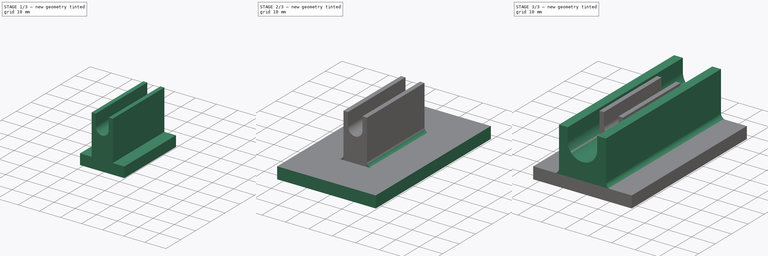
[diagram: build sequence overview — one tinted view per stage of 3, left to right]
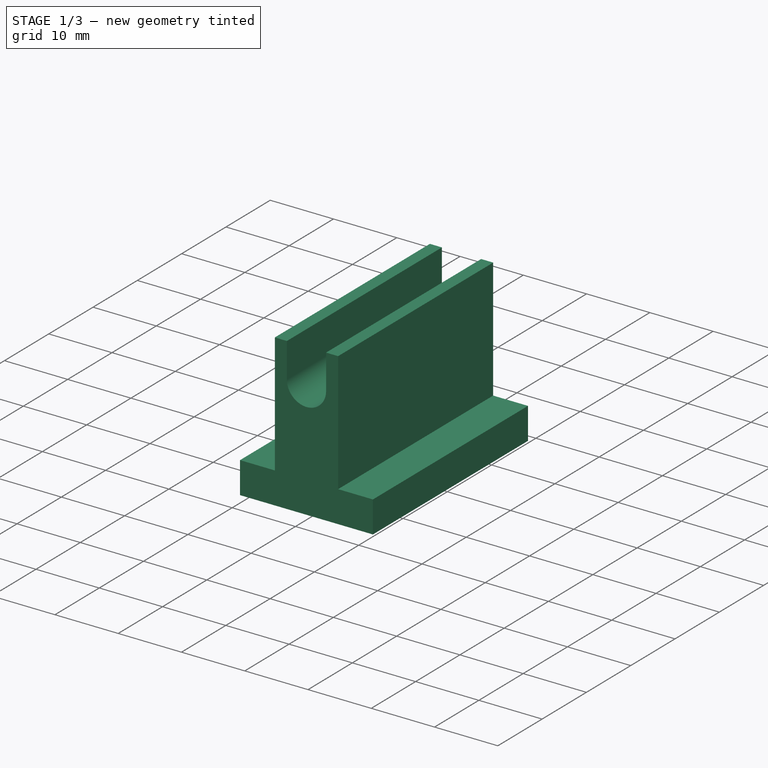
[diagram: stage 1 of 3 — iso view after this stage's code; geometry added in this stage tinted green]
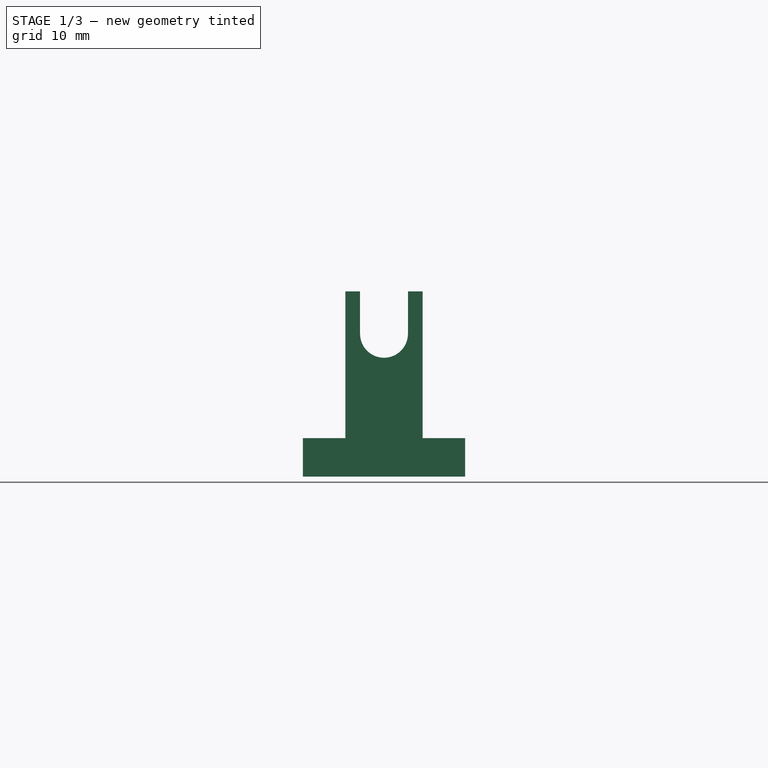
[diagram: stage 1 of 3 — front view after this stage's code; geometry added in this stage tinted green]
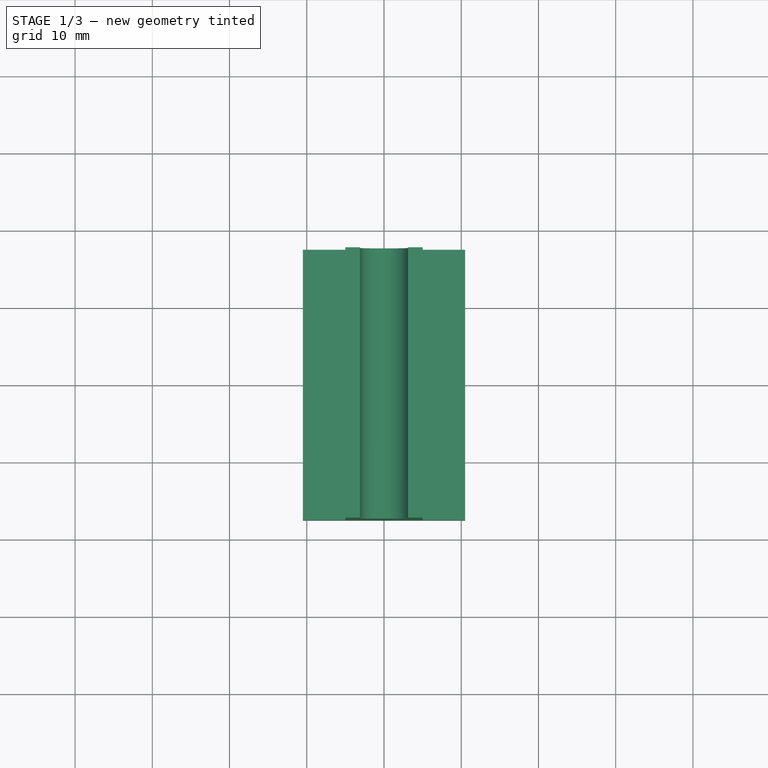
[diagram: stage 1 of 3 — top view after this stage's code; geometry added in this stage tinted green]
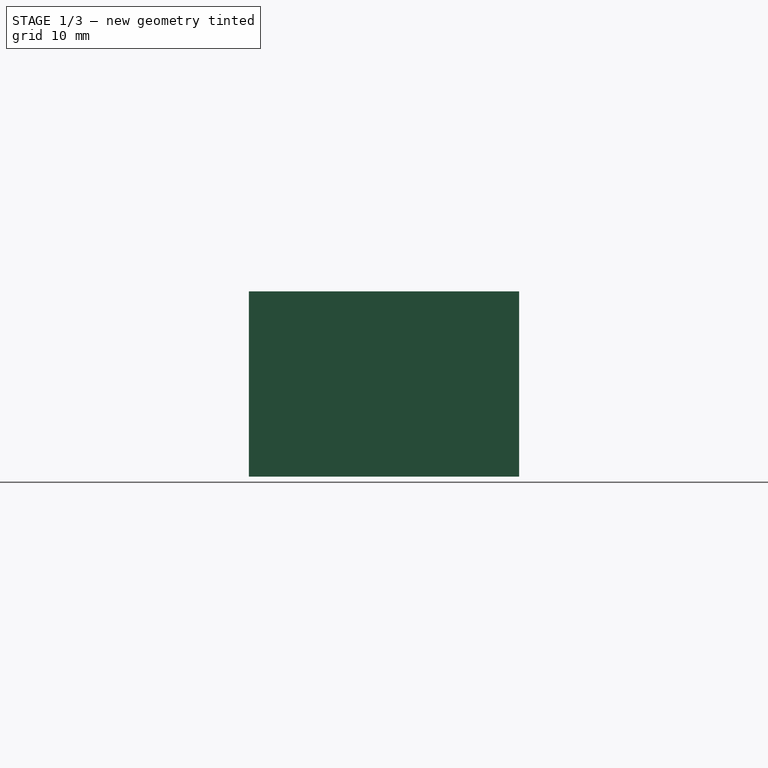
[diagram: stage 1 of 3 — right view after this stage's code; geometry added in this stage tinted green]
FCSTD DOCUMENT  (FreeCAD 1.2R20260113 (Git shallow))
Label: router bit mount
License: All rights reserved
LicenseURL: http://en.wikipedia.org/wiki/All_rights_reserved
objects: Sketcher::SketchObject×6, PartDesign::Pad×4, App::Point×2, PartDesign::Pocket×2, PartDesign::Fillet×2, PartDesign::Body×2
note: 38 computed .brp shape members not serialized (recipe doc carries the construction recipe); baked Part::Feature solids carry a one-line shape summary decoded from their .brp

FEATURE [PartDesign::Body] Body
  AllowCompound = false
  Group = -> [Sketch,Pad,Sketch001,Pad001,Sketch002,Pocket,Fillet]
  Origin = -> Origin
  Tip = -> Fillet
FEATURE [App::Point] Origin003
  Role = Origin
FEATURE [Sketcher::SketchObject] Sketch003
  ArcFitTolerance = 1e-06
  AttachmentSupport = -> [Origin002]
  ExternalTypes = [0]
  FullyConstrained = true
  MakeInternals = false
  MapMode = 5
  sketch-geometry (4):
    g0: LineSegment StartX=-10.5 StartY=17.5 StartZ=0 EndX=-10.5 EndY=-17.5 EndZ=0
    g1: LineSegment StartX=-10.5 StartY=-17.5 StartZ=0 EndX=10.5 EndY=-17.5 EndZ=0
    g2: LineSegment StartX=10.5 StartY=-17.5 StartZ=0 EndX=10.5 EndY=17.5 EndZ=0
    g3: LineSegment StartX=10.5 StartY=17.5 StartZ=0 EndX=-10.5 EndY=17.5 EndZ=0
  constraints (11):
    c: Coincident(g0,g1)
    c: Coincident(g1,g2)
    c: Coincident(g2,g3)
    c: Coincident(g3,g0)
    c: Vertical(g0)
    c: Vertical(g2)
    c: Horizontal(g1)
    c: Horizontal(g3)
    c: DistanceX(g3,g3) = 21
    c: DistanceY(g2,g2) = 35
    c: Symmetric(g0,g1,g-1)
FEATURE [PartDesign::Pad] Pad002
  Direction = (0,0,1)
  Length = 5
  Length2 = 10
  Profile = -> Sketch003
  ReferenceAxis = -> Sketch003 [N_Axis]
  SideType = 0
  Suppressed = false
  Type = 0
  Type2 = 0
FEATURE [Sketcher::SketchObject] Sketch004
  ArcFitTolerance = 1e-06
  AttachmentSupport = -> [Pad002]
  ExternalGeometry = -> [Pad002]
  ExternalTypes = [0,0]
  FullyConstrained = true
  MakeInternals = false
  MapMode = 5
  Placement = pos=(0,0,5) rot=(0,0,1;0rad)
  sketch-geometry (4):
    g0: LineSegment StartX=-5 StartY=17.5 StartZ=0 EndX=-5 EndY=-17.5 EndZ=0
    g1: LineSegment StartX=-5 StartY=-17.5 StartZ=0 EndX=5 EndY=-17.5 EndZ=0
    g2: LineSegment StartX=5 StartY=-17.5 StartZ=0 EndX=5 EndY=17.5 EndZ=0
    g3: LineSegment StartX=5 StartY=17.5 StartZ=0 EndX=-5 EndY=17.5 EndZ=0
  constraints (11):
    c: Coincident(g0,g1)
    c: Coincident(g1,g2)
    c: Coincident(g2,g3)
    c: Coincident(g3,g0)
    c: Vertical(g0)
    c: Vertical(g2)
    c: Horizontal(g3)
    c: DistanceX(g1,g1) = 10
    c: Symmetric(g0,g1,g-2)
    c: PointOnObject(g0,g-3)
    c: DistanceY(g2,g2) = 35
FEATURE [PartDesign::Pad] Pad003
  BaseFeature = -> Pad002
  Direction = (0,0,1)
  Length = 19
  Length2 = 10
  Profile = -> Sketch004
  ReferenceAxis = -> Sketch004 [N_Axis]
  SideType = 0
  Suppressed = false
  Type = 0
  Type2 = 0
FEATURE [Sketcher::SketchObject] Sketch005
  ArcFitTolerance = 1e-06
  AttachmentSupport = -> [Pad003]
  ExternalGeometry = -> [Pad003]
  ExternalTypes = [0,0]
  FullyConstrained = true
  MakeInternals = false
  MapMode = 5
  Placement = pos=(0,-17.5,0) rot=(1,0,0;1.5708rad)
  sketch-geometry (6):
    g0: ArcOfCircle CenterX=0 CenterY=18.5 CenterZ=0 NormalX=0 NormalY=0 NormalZ=1 AngleXU=0 Radius=3.1 StartAngle=3.14159 EndAngle=6.28319
    g1: GeomPoint [constr] X=3.1 Y=18.5 Z=0
    g2: GeomPoint [constr] X=-3.1 Y=18.5 Z=0
    g3: LineSegment StartX=3.1 StartY=18.5 StartZ=0 EndX=3.1 EndY=24 EndZ=0
    g4: LineSegment StartX=3.1 StartY=24 StartZ=0 EndX=-3.1 EndY=24 EndZ=0
    g5: LineSegment StartX=-3.1 StartY=24 StartZ=0 EndX=-3.1 EndY=18.5 EndZ=0
  constraints (15):
    c: PointOnObject(g0,g-2)
    c: DistanceY(g-1,g0) = 18.5
    c: Horizontal(g1,g2)
    c: Horizontal(g2,g0)
    c: Coincident(g3,g4)
    c: Coincident(g4,g5)
    c: Horizontal(g4)
    c: Vertical(g3)
    c: Vertical(g5)
    c: Coincident(g5,g2)
    c: PointOnObject(g3,g-3)
    c: Coincident(g1,g3)
    c: Coincident(g0,g3)
    c: Diameter(g0) = 6.2
    c: Coincident(g0,g5)
FEATURE [PartDesign::Pocket] Pocket001
  BaseFeature = -> Pad003
  Direction = (0,1,-2e-16)
  Length = 35
  Length2 = 5
  Profile = -> Sketch005
  ReferenceAxis = -> Sketch005 [N_Axis]
  SideType = 0
  Suppressed = false
  Type = 1
  Type2 = 0
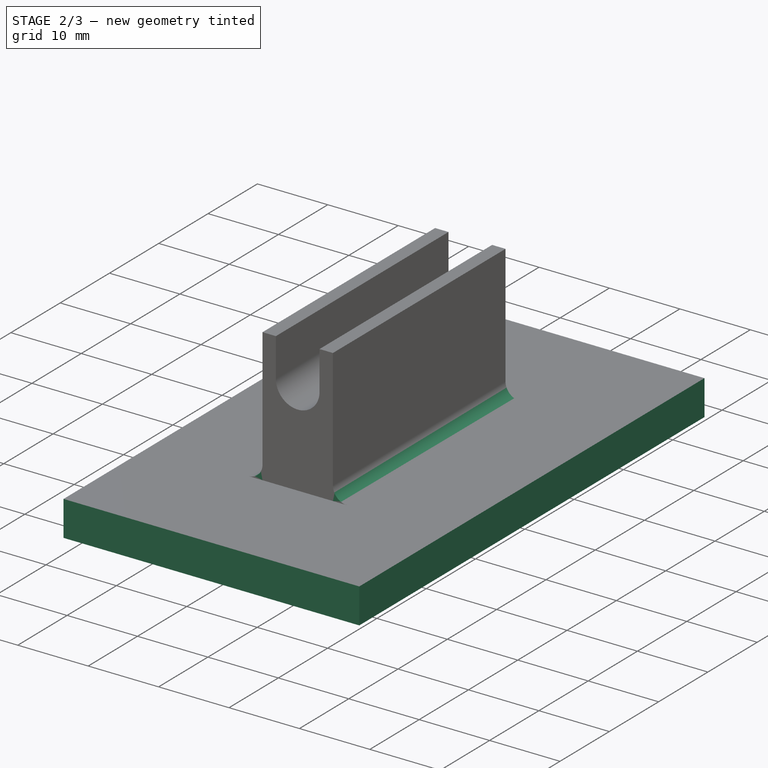
[diagram: stage 2 of 3 — iso view after this stage's code; geometry added in this stage tinted green]
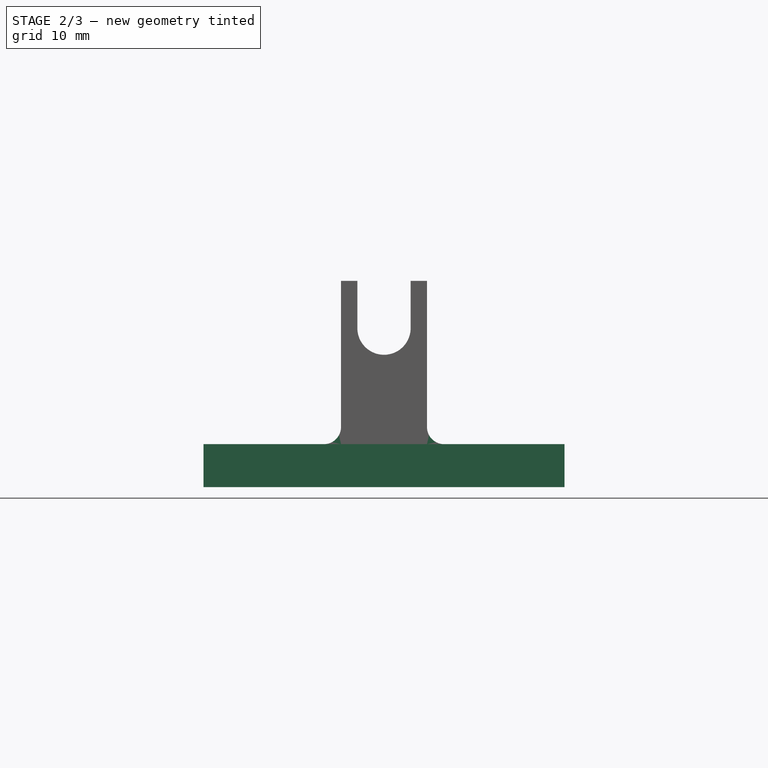
[diagram: stage 2 of 3 — front view after this stage's code; geometry added in this stage tinted green]
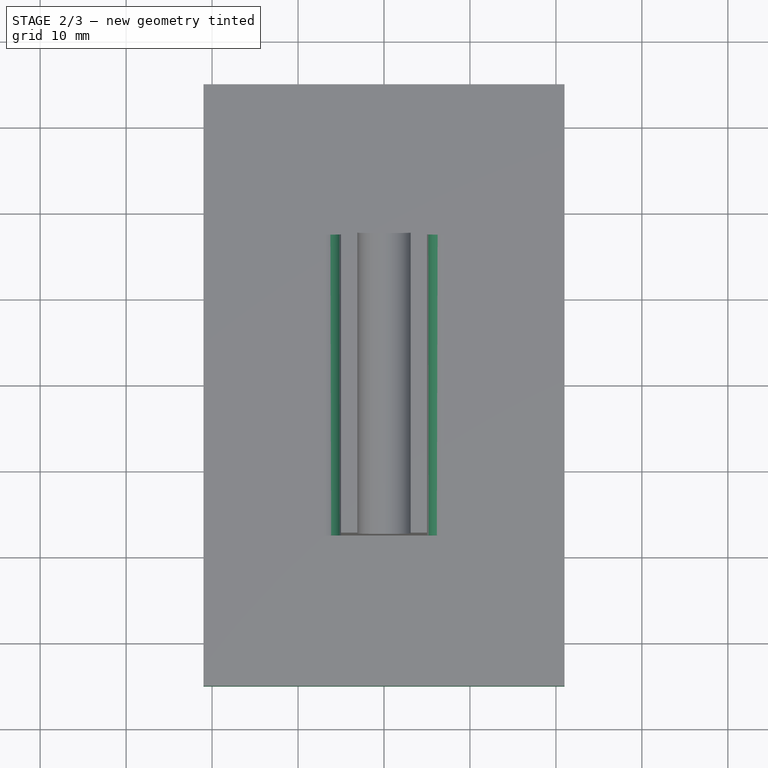
[diagram: stage 2 of 3 — top view after this stage's code; geometry added in this stage tinted green]
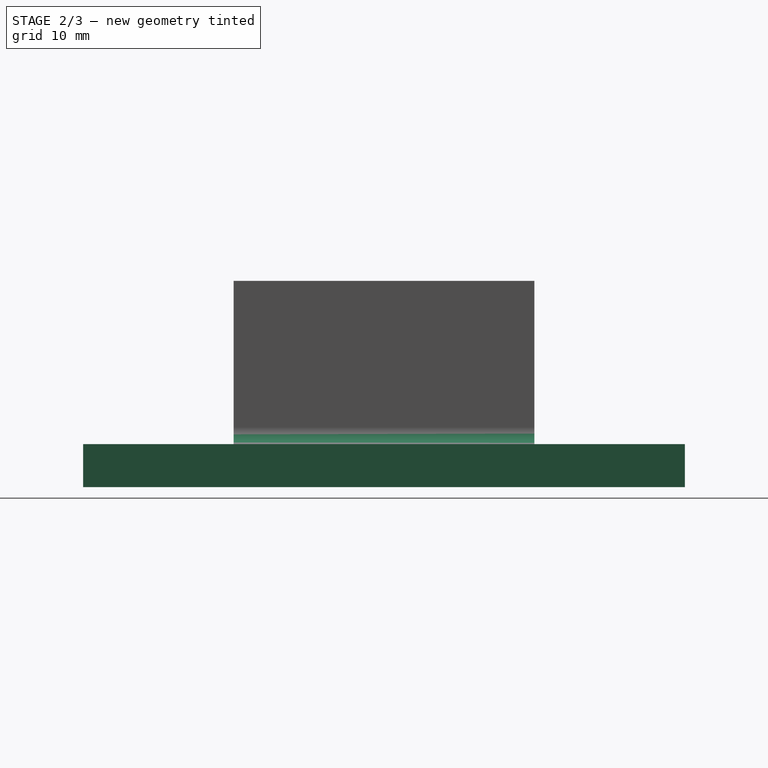
[diagram: stage 2 of 3 — right view after this stage's code; geometry added in this stage tinted green]
FEATURE [App::Point] Origin001
  Role = Origin
FEATURE [Sketcher::SketchObject] Sketch
  ArcFitTolerance = 1e-06
  AttachmentSupport = -> [Origin]
  ExternalTypes = [0]
  FullyConstrained = true
  MakeInternals = false
  MapMode = 5
  sketch-geometry (4):
    g0: LineSegment StartX=-21 StartY=35 StartZ=0 EndX=-21 EndY=-35 EndZ=0
    g1: LineSegment StartX=-21 StartY=-35 StartZ=0 EndX=21 EndY=-35 EndZ=0
    g2: LineSegment StartX=21 StartY=-35 StartZ=0 EndX=21 EndY=35 EndZ=0
    g3: LineSegment StartX=21 StartY=35 StartZ=0 EndX=-21 EndY=35 EndZ=0
  constraints (11):
    c: Coincident(g0,g1)
    c: Coincident(g1,g2)
    c: Coincident(g2,g3)
    c: Coincident(g3,g0)
    c: Vertical(g0)
    c: Vertical(g2)
    c: Horizontal(g1)
    c: Horizontal(g3)
    c: DistanceX(g3,g3) = 42
    c: DistanceY(g2,g2) = 70
    c: Symmetric(g0,g1,g-1)
FEATURE [PartDesign::Pad] Pad
  Direction = (0,0,1)
  Length = 5
  Length2 = 10
  Profile = -> Sketch
  ReferenceAxis = -> Sketch [N_Axis]
  SideType = 0
  Suppressed = false
  Type = 0
  Type2 = 0
FEATURE [PartDesign::Fillet] Fillet001
  Base = -> Pocket001 [Edge18,Edge16]
  BaseFeature = -> Pocket001
  Radius = 2
  SupportTransform = false
  Suppressed = false
  UseAllEdges = false
FEATURE [PartDesign::Body] Body001
  AllowCompound = false
  Group = -> [Sketch003,Pad002,Sketch004,Pad003,Sketch005,Pocket001,Fillet001]
  Origin = -> Origin002
  Tip = -> Fillet001
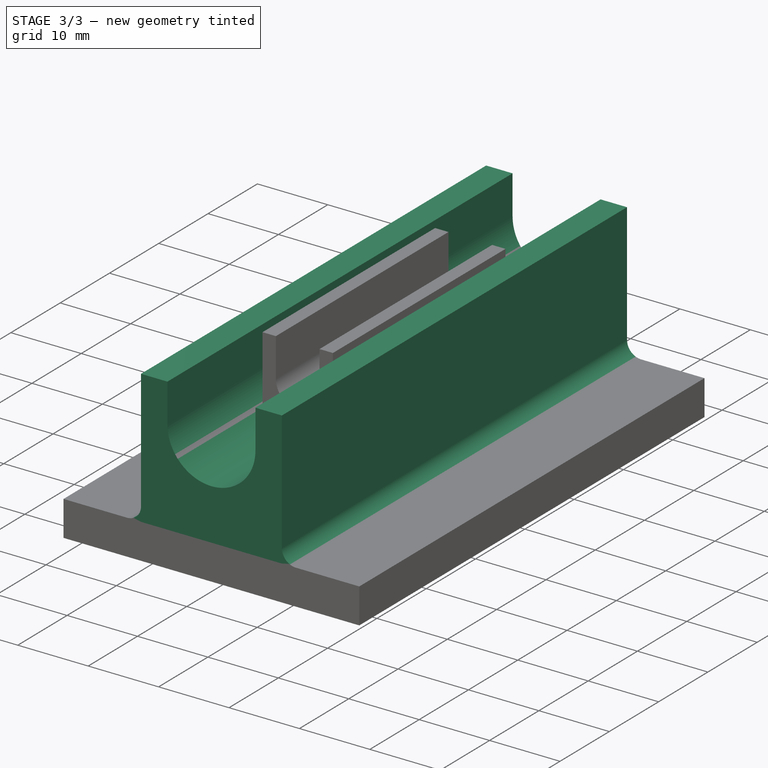
[diagram: stage 3 of 3 — iso view after this stage's code; geometry added in this stage tinted green]
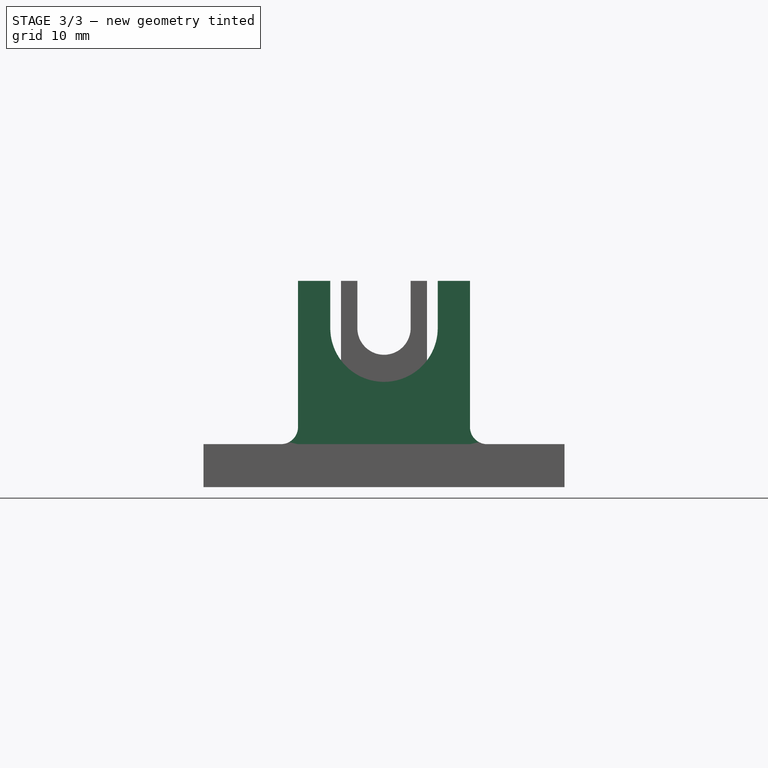
[diagram: stage 3 of 3 — front view after this stage's code; geometry added in this stage tinted green]
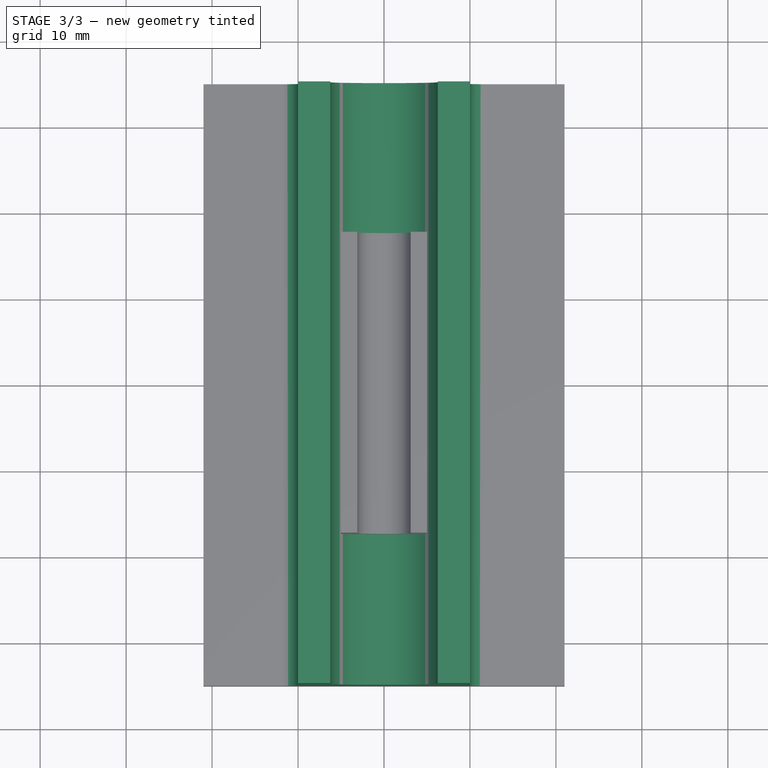
[diagram: stage 3 of 3 — top view after this stage's code; geometry added in this stage tinted green]
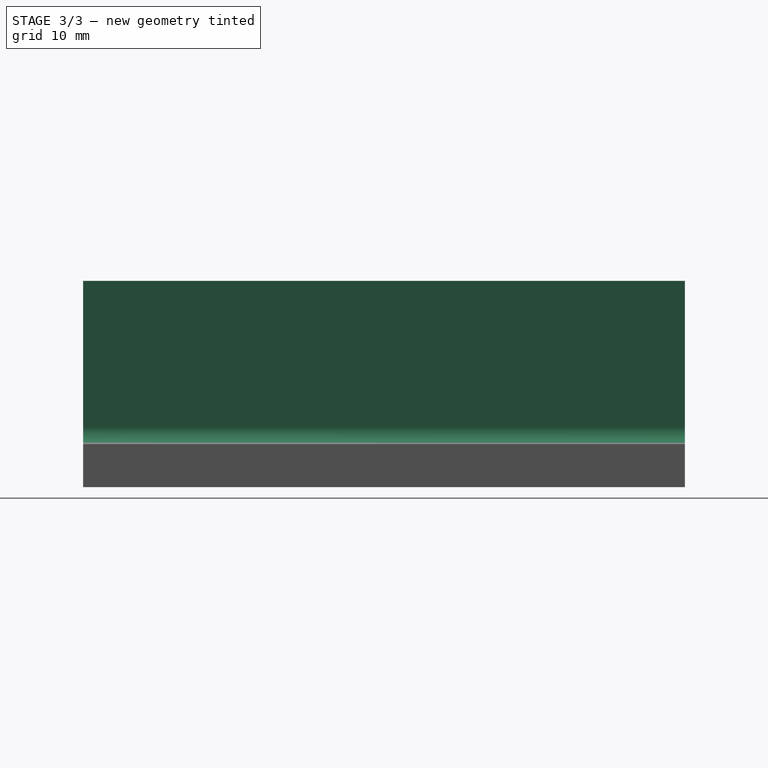
[diagram: stage 3 of 3 — right view after this stage's code; geometry added in this stage tinted green]
FEATURE [Sketcher::SketchObject] Sketch001
  ArcFitTolerance = 1e-06
  AttachmentSupport = -> [Pad]
  ExternalGeometry = -> [Pad]
  ExternalTypes = [0,0]
  FullyConstrained = true
  MakeInternals = false
  MapMode = 5
  Placement = pos=(0,0,5) rot=(0,0,1;0rad)
  sketch-geometry (4):
    g0: LineSegment StartX=-10 StartY=35 StartZ=0 EndX=-10 EndY=-35 EndZ=0
    g1: LineSegment StartX=-10 StartY=-35 StartZ=0 EndX=10 EndY=-35 EndZ=0
    g2: LineSegment StartX=10 StartY=-35 StartZ=0 EndX=10 EndY=35 EndZ=0
    g3: LineSegment StartX=10 StartY=35 StartZ=0 EndX=-10 EndY=35 EndZ=0
  constraints (11):
    c: Coincident(g0,g1)
    c: Coincident(g1,g2)
    c: Coincident(g2,g3)
    c: Coincident(g3,g0)
    c: Vertical(g0)
    c: Vertical(g2)
    c: Horizontal(g3)
    c: DistanceX(g1,g1) = 20
    c: Symmetric(g0,g1,g-2)
    c: PointOnObject(g0,g-3)
    c: DistanceY(g2,g2) = 70
FEATURE [PartDesign::Pad] Pad001
  BaseFeature = -> Pad
  Direction = (0,0,1)
  Length = 19
  Length2 = 10
  Profile = -> Sketch001
  ReferenceAxis = -> Sketch001 [N_Axis]
  SideType = 0
  Suppressed = false
  Type = 0
  Type2 = 0
FEATURE [Sketcher::SketchObject] Sketch002
  ArcFitTolerance = 1e-06
  AttachmentSupport = -> [Pad001]
  ExternalGeometry = -> [Pad001]
  ExternalTypes = [0,0]
  FullyConstrained = true
  MakeInternals = false
  MapMode = 5
  Placement = pos=(0,-35,0) rot=(1,0,0;1.5708rad)
  sketch-geometry (6):
    g0: ArcOfCircle CenterX=0 CenterY=18.5 CenterZ=0 NormalX=0 NormalY=0 NormalZ=1 AngleXU=0 Radius=6.25 StartAngle=3.14159 EndAngle=6.28319
    g1: GeomPoint [constr] X=6.25 Y=18.5 Z=0
    g2: GeomPoint [constr] X=-6.25 Y=18.5 Z=0
    g3: LineSegment StartX=6.25 StartY=18.5 StartZ=0 EndX=6.25 EndY=24 EndZ=0
    g4: LineSegment StartX=6.25 StartY=24 StartZ=0 EndX=-6.25 EndY=24 EndZ=0
    g5: LineSegment StartX=-6.25 StartY=24 StartZ=0 EndX=-6.25 EndY=18.5 EndZ=0
  constraints (15):
    c: PointOnObject(g0,g-2)
    c: DistanceY(g-1,g0) = 18.5
    c: Horizontal(g1,g2)
    c: Horizontal(g2,g0)
    c: Coincident(g3,g4)
    c: Coincident(g4,g5)
    c: Horizontal(g4)
    c: Vertical(g3)
    c: Vertical(g5)
    c: Coincident(g5,g2)
    c: PointOnObject(g3,g-3)
    c: Coincident(g1,g3)
    c: Coincident(g0,g3)
    c: Diameter(g0) = 12.5
    c: Coincident(g0,g5)
FEATURE [PartDesign::Pocket] Pocket
  BaseFeature = -> Pad001
  Direction = (0,1,-2e-16)
  Length = 35
  Length2 = 5
  Profile = -> Sketch002
  ReferenceAxis = -> Sketch002 [N_Axis]
  SideType = 0
  Suppressed = false
  Type = 1
  Type2 = 0
FEATURE [PartDesign::Fillet] Fillet
  Base = -> Pocket [Edge18,Edge16]
  BaseFeature = -> Pocket
  Radius = 2
  SupportTransform = false
  Suppressed = false
  UseAllEdges = false
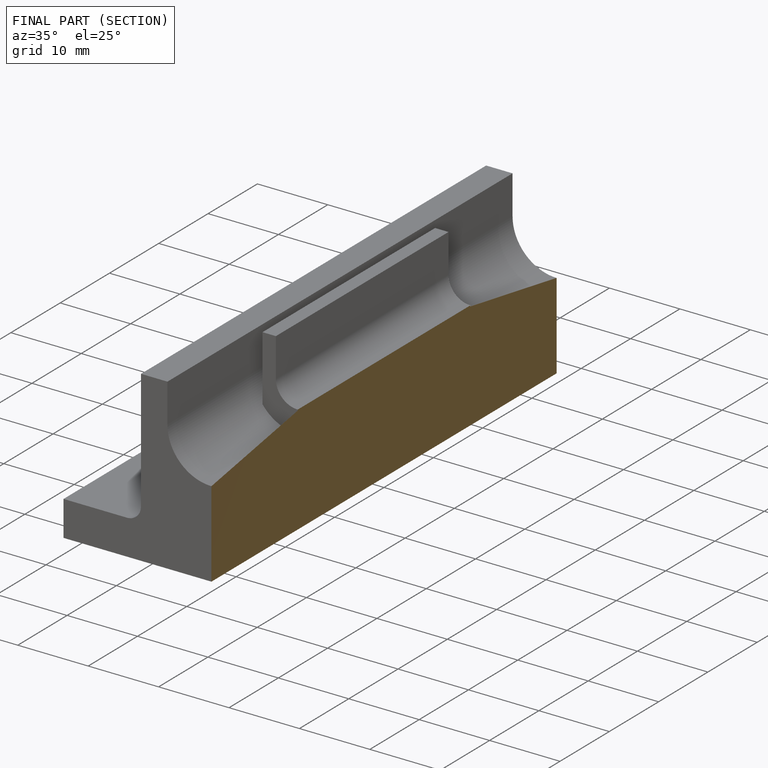
[diagram: finished part — half-section view (interior)]
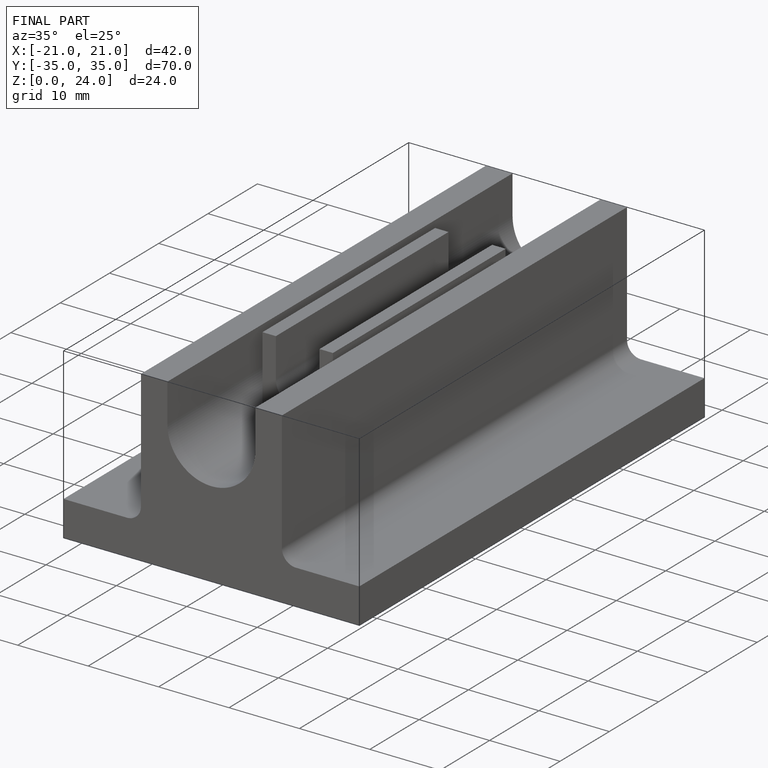
[diagram: finished part — iso view with bounding-box wireframe]
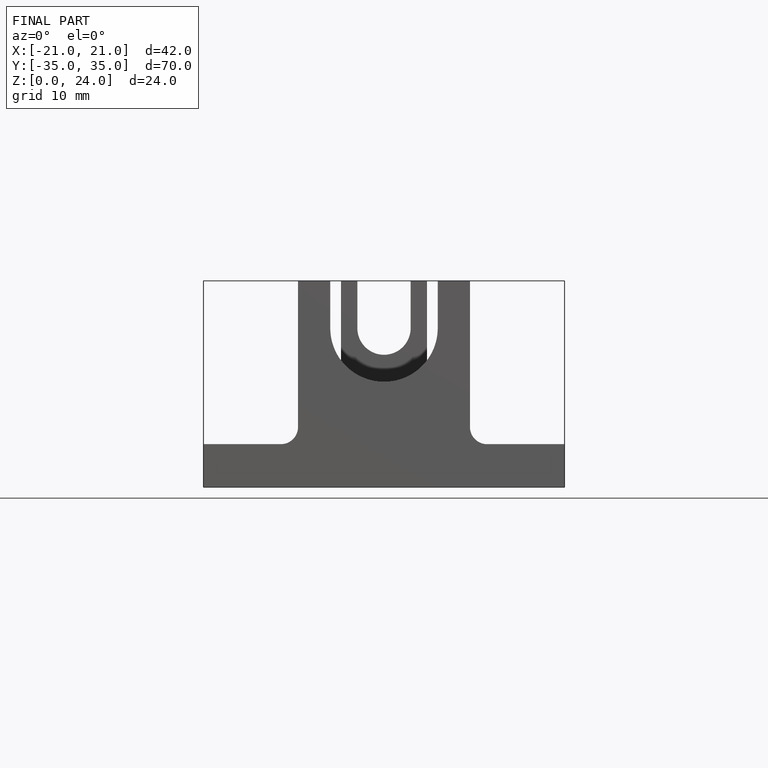
[diagram: finished part — front view with bounding-box wireframe]
